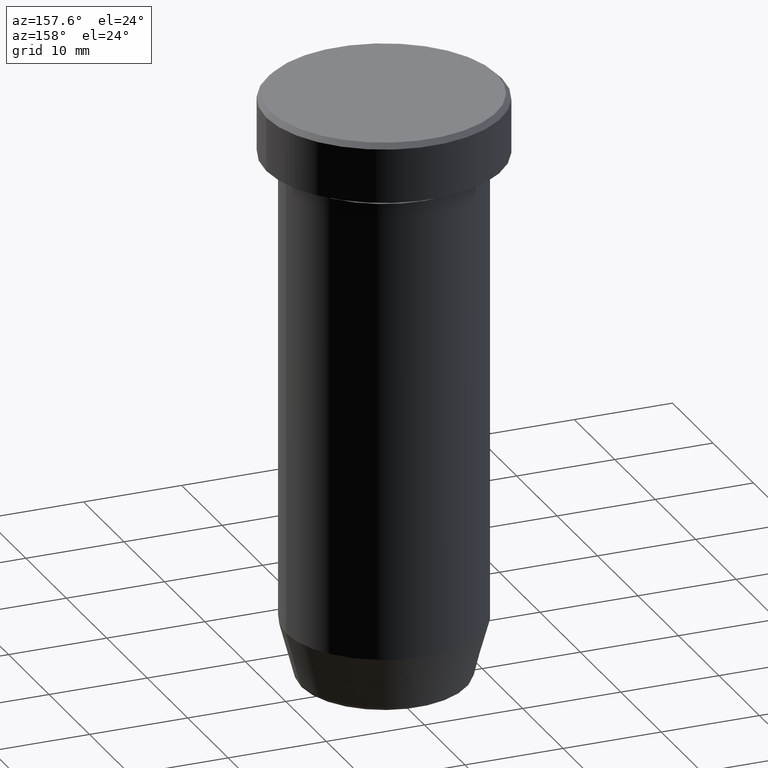
[diagram: clean part render]
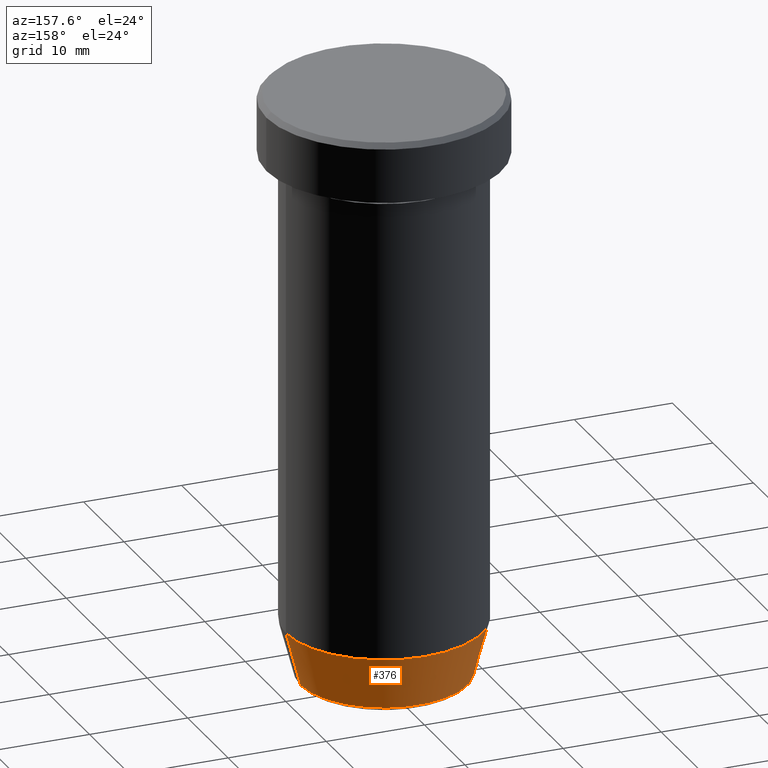
[diagram: same view with one face highlighted and labeled with its STEP entity id]
A machine part, auxiliary view. The second image highlights one B-rep face of the part: STEP entity #376.
In plain terms, the highlighted conical surface has half-angle 15 deg.
Its self-contained STEP definition (entity closure, byte-faithful):
#8 = ORIENTED_EDGE ( 'NONE', *, *, #243, .T. ) ;
#15 = CIRCLE ( 'NONE', #579, 8.491604264568310967 ) ;
#45 = AXIS2_PLACEMENT_3D ( 'NONE', #84, #494, #249 ) ;
#61 = DIRECTION ( 'NONE',  ( 1.000000000000000000, 0.000000000000000000, 0.000000000000000000 ) ) ;
#81 = CARTESIAN_POINT ( 'NONE',  ( 8.392304845413260495, 0.000000000000000000, -60.00000000000000000 ) ) ;
#82 = CARTESIAN_POINT ( 'NONE',  ( 8.491604264568310967, 0.000000000000000000, -59.62940952255125637 ) ) ;
#84 = CARTESIAN_POINT ( 'NONE',  ( 0.000000000000000000, 0.000000000000000000, -53.99999999999999289 ) ) ;
#93 = ORIENTED_EDGE ( 'NONE', *, *, #522, .F. ) ;
#98 = ORIENTED_EDGE ( 'NONE', *, *, #584, .F. ) ;
#104 = EDGE_CURVE ( 'NONE', #289, #560, #15, .T. ) ;
#126 = CARTESIAN_POINT ( 'NONE',  ( -8.491604264568310967, 1.132284198685156387E-15, -59.62940952255125637 ) ) ;
#144 = DIRECTION ( 'NONE',  ( -0.000000000000000000, -0.000000000000000000, 1.000000000000000000 ) ) ;
#172 = FACE_OUTER_BOUND ( 'NONE', #410, .T. ) ;
#227 = VECTOR ( 'NONE', #408, 1000.000000000000000 ) ;
#243 = EDGE_CURVE ( 'NONE', #560, #536, #469, .T. ) ;
#244 = CIRCLE ( 'NONE', #45, 9.999999999999998224 ) ;
#249 = DIRECTION ( 'NONE',  ( 1.000000000000000000, 0.000000000000000000, 0.000000000000000000 ) ) ;
#279 = CARTESIAN_POINT ( 'NONE',  ( -8.392304845413260495, 1.027760926640417114E-15, -60.00000000000000000 ) ) ;
#289 = VERTEX_POINT ( 'NONE', #82 ) ;
#311 = VECTOR ( 'NONE', #425, 1000.000000000000000 ) ;
#316 = CARTESIAN_POINT ( 'NONE',  ( 0.000000000000000000, 0.000000000000000000, -59.62940952255125637 ) ) ;
#362 = ORIENTED_EDGE ( 'NONE', *, *, #104, .T. ) ;
#376 = ADVANCED_FACE ( 'NONE', ( #172 ), #596, .T. ) ;
#384 = CARTESIAN_POINT ( 'NONE',  ( 9.999999999999998224, 0.000000000000000000, -53.99999999999999289 ) ) ;
#408 = DIRECTION ( 'NONE',  ( -0.2588190451025209060, 3.169619151431766790E-17, 0.9659258262890682012 ) ) ;
#410 = EDGE_LOOP ( 'NONE', ( #362, #8, #98, #93 ) ) ;
#425 = DIRECTION ( 'NONE',  ( 0.2588190451025209060, 0.000000000000000000, 0.9659258262890682012 ) ) ;
#443 = CARTESIAN_POINT ( 'NONE',  ( -9.999999999999998224, 1.224646799147353059E-15, -53.99999999999999289 ) ) ;
#469 = LINE ( 'NONE', #279, #227 ) ;
#472 = AXIS2_PLACEMENT_3D ( 'NONE', #545, #502, #61 ) ;
#482 = VERTEX_POINT ( 'NONE', #384 ) ;
#486 = LINE ( 'NONE', #81, #311 ) ;
#494 = DIRECTION ( 'NONE',  ( -0.000000000000000000, -0.000000000000000000, 1.000000000000000000 ) ) ;
#502 = DIRECTION ( 'NONE',  ( -0.000000000000000000, -0.000000000000000000, 1.000000000000000000 ) ) ;
#522 = EDGE_CURVE ( 'NONE', #289, #482, #486, .T. ) ;
#536 = VERTEX_POINT ( 'NONE', #443 ) ;
#545 = CARTESIAN_POINT ( 'NONE',  ( 0.000000000000000000, 0.000000000000000000, -60.00000000000000000 ) ) ;
#560 = VERTEX_POINT ( 'NONE', #126 ) ;
#579 = AXIS2_PLACEMENT_3D ( 'NONE', #316, #144, #591 ) ;
#584 = EDGE_CURVE ( 'NONE', #482, #536, #244, .T. ) ;
#591 = DIRECTION ( 'NONE',  ( -1.000000000000000000, 0.000000000000000000, 0.000000000000000000 ) ) ;
#596 = CONICAL_SURFACE ( 'NONE', #472, 8.392304845413260495, 0.2617993877991495744 ) ;